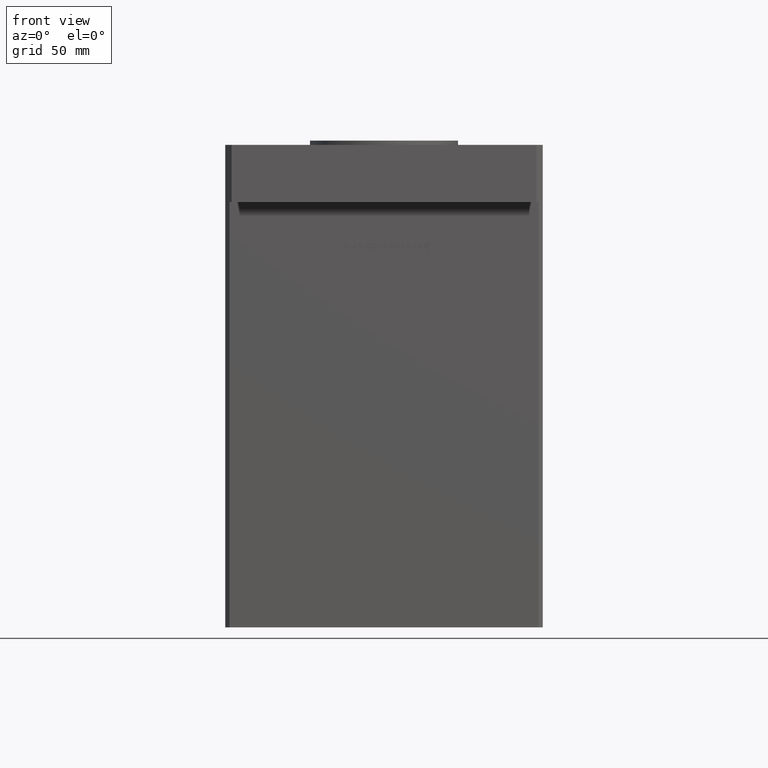
[diagram: clean part render]
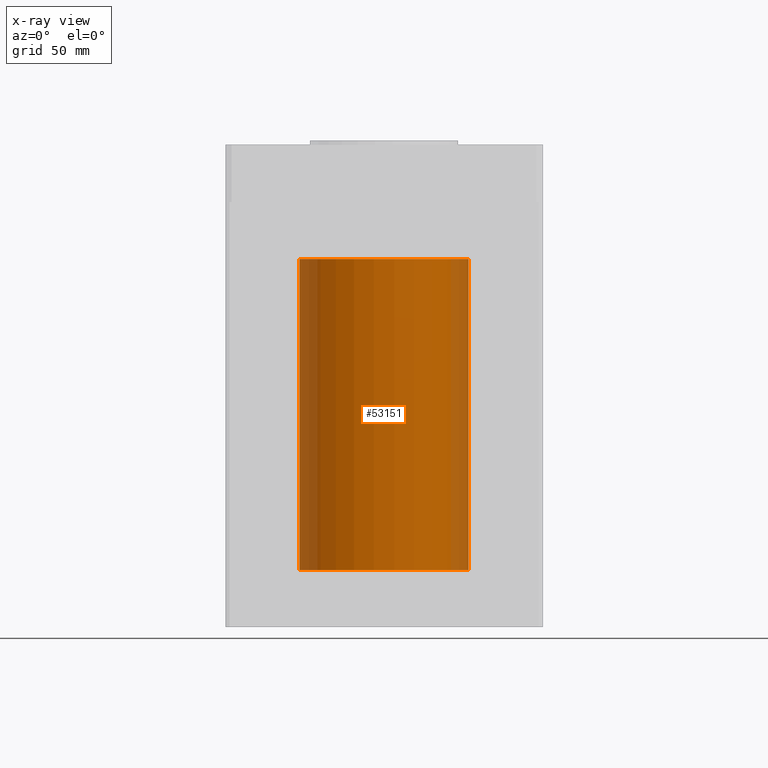
[diagram: x-ray — body ghosted, one internal face saturated and labeled with its STEP entity id]
A machine part, front view, then the same camera in x-ray: the body is ghosted and one INTERNAL B-rep face — a face not visible from any outside direction — is saturated and labeled: STEP entity #53151.
In plain terms, the highlighted cylindrical surface (partial cylindrical patch) has radius 40 mm, axis along (-0, -0, -1).
Its self-contained STEP definition (entity closure, byte-faithful):
#297 = VERTEX_POINT ( 'NONE', #22296 ) ;
#462 = CARTESIAN_POINT ( 'NONE',  ( 40.00000000000000000, 4.898587196589413026E-15, 147.0000000000000000 ) ) ;
#2753 = CARTESIAN_POINT ( 'NONE',  ( 40.00000000000000000, 4.898587196589413026E-15, 0.000000000000000000 ) ) ;
#4851 = ORIENTED_EDGE ( 'NONE', *, *, #7112, .F. ) ;
#7112 = EDGE_CURVE ( 'NONE', #297, #45856, #12686, .T. ) ;
#9183 = AXIS2_PLACEMENT_3D ( 'NONE', #31322, #31063, #51272 ) ;
#10284 = ORIENTED_EDGE ( 'NONE', *, *, #33944, .T. ) ;
#11336 = DIRECTION ( 'NONE',  ( 1.000000000000000000, 0.000000000000000000, 0.000000000000000000 ) ) ;
#12686 = LINE ( 'NONE', #41483, #16421 ) ;
#13131 = ORIENTED_EDGE ( 'NONE', *, *, #49216, .F. ) ;
#13369 = LINE ( 'NONE', #462, #21992 ) ;
#16421 = VECTOR ( 'NONE', #37441, 1000.000000000000000 ) ;
#17575 = ORIENTED_EDGE ( 'NONE', *, *, #45849, .T. ) ;
#19747 = FACE_OUTER_BOUND ( 'NONE', #37434, .T. ) ;
#20791 = AXIS2_PLACEMENT_3D ( 'NONE', #48777, #44195, #11336 ) ;
#20825 = CARTESIAN_POINT ( 'NONE',  ( 0.000000000000000000, 0.000000000000000000, 147.0000000000000000 ) ) ;
#21992 = VECTOR ( 'NONE', #29258, 1000.000000000000000 ) ;
#22296 = CARTESIAN_POINT ( 'NONE',  ( -40.00000000000000000, 0.000000000000000000, 147.0000000000000000 ) ) ;
#27558 = VERTEX_POINT ( 'NONE', #2753 ) ;
#29258 = DIRECTION ( 'NONE',  ( -0.000000000000000000, -0.000000000000000000, -1.000000000000000000 ) ) ;
#31063 = DIRECTION ( 'NONE',  ( -0.000000000000000000, 0.000000000000000000, 1.000000000000000000 ) ) ;
#31322 = CARTESIAN_POINT ( 'NONE',  ( 0.000000000000000000, 0.000000000000000000, 0.000000000000000000 ) ) ;
#32398 = CIRCLE ( 'NONE', #9183, 40.00000000000000000 ) ;
#32714 = CARTESIAN_POINT ( 'NONE',  ( 40.00000000000000000, 4.898587196589413026E-15, 147.0000000000000000 ) ) ;
#33944 = EDGE_CURVE ( 'NONE', #297, #35844, #38092, .T. ) ;
#35844 = VERTEX_POINT ( 'NONE', #32714 ) ;
#36167 = DIRECTION ( 'NONE',  ( -1.000000000000000000, 0.000000000000000000, 0.000000000000000000 ) ) ;
#36650 = AXIS2_PLACEMENT_3D ( 'NONE', #20825, #48839, #36167 ) ;
#37434 = EDGE_LOOP ( 'NONE', ( #10284, #17575, #13131, #4851 ) ) ;
#37441 = DIRECTION ( 'NONE',  ( -0.000000000000000000, -0.000000000000000000, -1.000000000000000000 ) ) ;
#38092 = CIRCLE ( 'NONE', #20791, 40.00000000000000000 ) ;
#40480 = CYLINDRICAL_SURFACE ( 'NONE', #36650, 40.00000000000000000 ) ;
#41483 = CARTESIAN_POINT ( 'NONE',  ( -40.00000000000000000, 0.000000000000000000, 147.0000000000000000 ) ) ;
#44195 = DIRECTION ( 'NONE',  ( -0.000000000000000000, 0.000000000000000000, 1.000000000000000000 ) ) ;
#45415 = CARTESIAN_POINT ( 'NONE',  ( -40.00000000000000000, 0.000000000000000000, 0.000000000000000000 ) ) ;
#45849 = EDGE_CURVE ( 'NONE', #35844, #27558, #13369, .T. ) ;
#45856 = VERTEX_POINT ( 'NONE', #45415 ) ;
#48777 = CARTESIAN_POINT ( 'NONE',  ( 0.000000000000000000, 0.000000000000000000, 147.0000000000000000 ) ) ;
#48839 = DIRECTION ( 'NONE',  ( -0.000000000000000000, -0.000000000000000000, -1.000000000000000000 ) ) ;
#49216 = EDGE_CURVE ( 'NONE', #45856, #27558, #32398, .T. ) ;
#51272 = DIRECTION ( 'NONE',  ( 1.000000000000000000, 0.000000000000000000, 0.000000000000000000 ) ) ;
#53151 = ADVANCED_FACE ( 'NONE', ( #19747 ), #40480, .F. ) ;